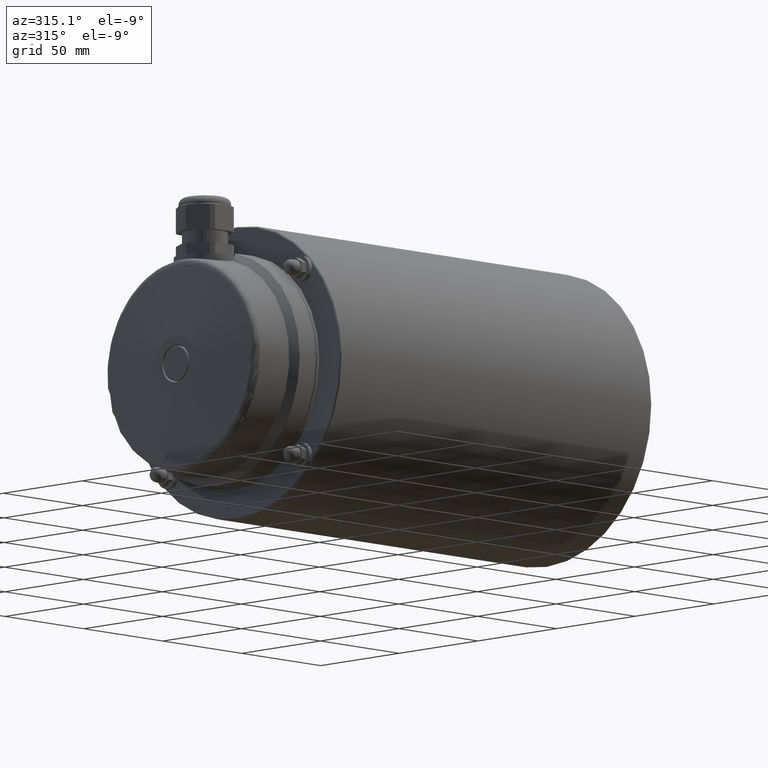
[diagram: clean part render]
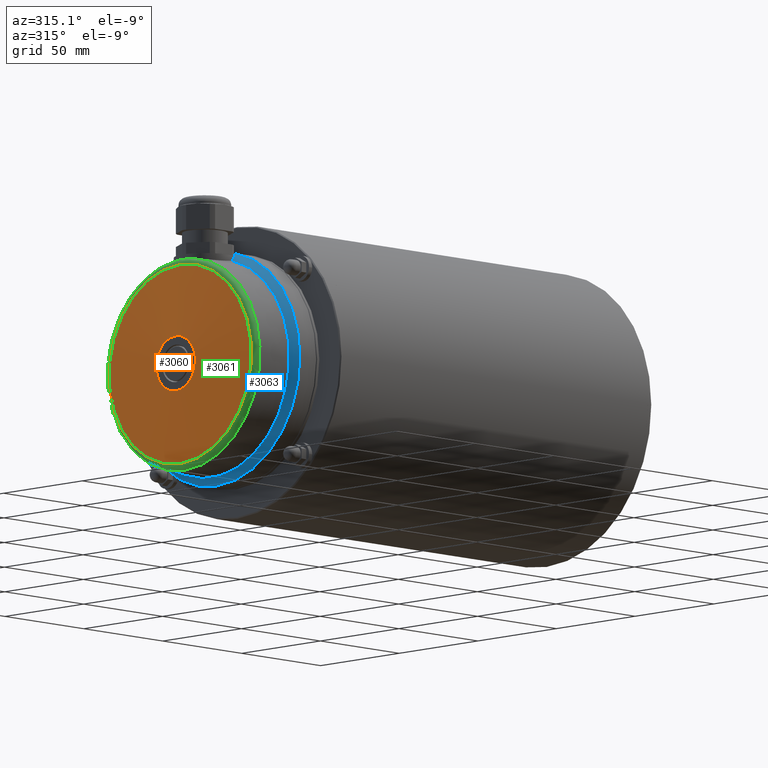
[diagram: same view with three faces highlighted in distinct colors, each labeled with its STEP entity id]
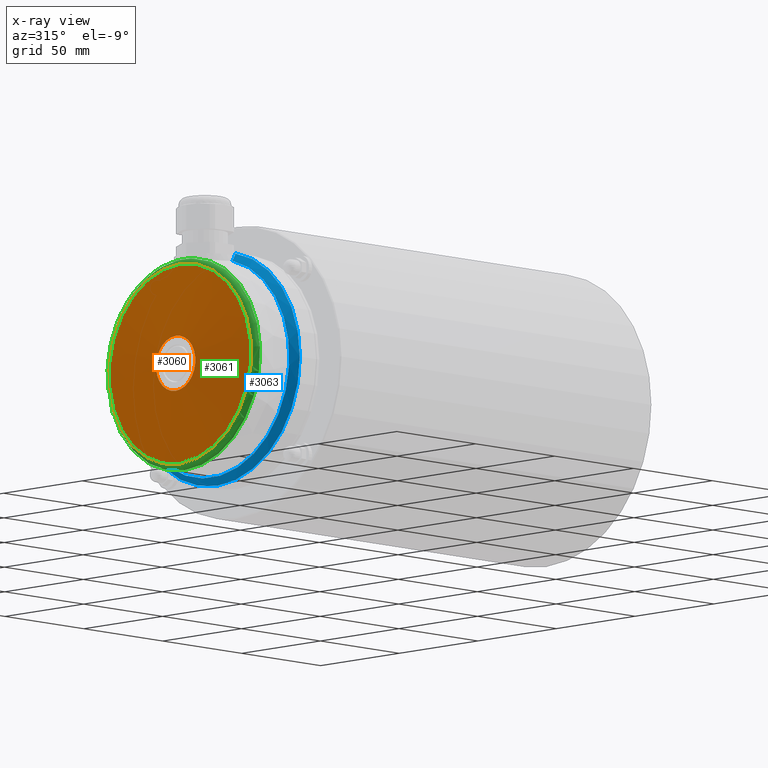
[diagram: x-ray of the same camera — body ghosted, the three highlighted faces saturated]
A machine part, auxiliary view with three faces highlighted in distinct colors.
The next image is the same camera in x-ray (body ghosted, the three faces saturated) — at least one of them is partly hidden behind the body in this view.
Their STEP definitions:

[orange] entity #3060 — the highlighted conical surface has half-angle 85 deg.
#40=CONICAL_SURFACE('',#3275,12.5,1.48352986419518);
#204=CIRCLE('',#3274,12.5);
#205=CIRCLE('',#3276,45.2778767519798);
#363=ORIENTED_EDGE('',*,*,#844,.T.);
#364=ORIENTED_EDGE('',*,*,#843,.F.);
#843=EDGE_CURVE('',#1094,#1094,#204,.T.);
#844=EDGE_CURVE('',#1095,#1095,#205,.T.);
#1094=VERTEX_POINT('',#4304);
#1095=VERTEX_POINT('',#4307);
#1526=EDGE_LOOP('',(#363));
#1527=EDGE_LOOP('',(#364));
#1763=FACE_BOUND('',#1526,.T.);
#1764=FACE_BOUND('',#1527,.T.);
#3060=ADVANCED_FACE('',(#1763,#1764),#40,.T.);
#3274=AXIS2_PLACEMENT_3D('',#4303,#3660,#3661);
#3275=AXIS2_PLACEMENT_3D('',#4305,#3662,#3663);
#3276=AXIS2_PLACEMENT_3D('',#4306,#3664,#3665);
#3660=DIRECTION('',(-1.,0.,0.));
#3661=DIRECTION('',(0.,0.,1.));
#3662=DIRECTION('',(1.,0.,0.));
#3663=DIRECTION('',(0.,0.,-1.));
#3664=DIRECTION('',(-1.,0.,0.));
#3665=DIRECTION('',(0.,0.,1.));
#4303=CARTESIAN_POINT('',(-241.,0.,0.));
#4304=CARTESIAN_POINT('',(-241.,0.,12.5));
#4305=CARTESIAN_POINT('',(-241.,0.,0.));
#4306=CARTESIAN_POINT('',(-238.132307369752,0.,0.));
#4307=CARTESIAN_POINT('',(-238.132307369752,0.,45.2778767519798));

[blue] entity #3063 — the highlighted conical surface has half-angle 45 deg.
#42=CONICAL_SURFACE('',#3281,49.5,0.785398163397453);
#132=B_SPLINE_CURVE_WITH_KNOTS('',3,(#4343,#4344,#4345,#4346),
 .UNSPECIFIED.,.F.,.F.,(4,4),(0.000390959513495743,0.00246590546474877),
 .UNSPECIFIED.);
#133=B_SPLINE_CURVE_WITH_KNOTS('',3,(#4349,#4350,#4351,#4352),
 .UNSPECIFIED.,.F.,.F.,(4,4),(0.000506503699193227,0.00371883899180648),
 .UNSPECIFIED.);
#134=B_SPLINE_CURVE_WITH_KNOTS('',3,(#4353,#4354,#4355,#4356),
 .UNSPECIFIED.,.F.,.F.,(4,4),(0.00262470275452304,0.00583703804713626),
 .UNSPECIFIED.);
#135=B_SPLINE_CURVE_WITH_KNOTS('',3,(#4358,#4359,#4360,#4361),
 .UNSPECIFIED.,.F.,.F.,(4,4),(0.000555408213408047,0.00263035416466102),
 .UNSPECIFIED.);
#207=CIRCLE('',#3280,49.5);
#208=CIRCLE('',#3282,52.8171893646357);
#372=ORIENTED_EDGE('',*,*,#850,.F.);
#373=ORIENTED_EDGE('',*,*,#851,.F.);
#374=ORIENTED_EDGE('',*,*,#848,.F.);
#375=ORIENTED_EDGE('',*,*,#852,.F.);
#376=ORIENTED_EDGE('',*,*,#853,.F.);
#377=ORIENTED_EDGE('',*,*,#854,.T.);
#848=EDGE_CURVE('',#1098,#1099,#207,.T.);
#850=EDGE_CURVE('',#1100,#1101,#132,.T.);
#851=EDGE_CURVE('',#1099,#1100,#133,.T.);
#852=EDGE_CURVE('',#1102,#1098,#134,.T.);
#853=EDGE_CURVE('',#1103,#1102,#135,.T.);
#854=EDGE_CURVE('',#1103,#1101,#208,.T.);
#1098=VERTEX_POINT('',#4329);
#1099=VERTEX_POINT('',#4331);
#1100=VERTEX_POINT('',#4347);
#1101=VERTEX_POINT('',#4348);
#1102=VERTEX_POINT('',#4357);
#1103=VERTEX_POINT('',#4362);
#1531=EDGE_LOOP('',(#372,#373,#374,#375,#376,#377));
#1768=FACE_BOUND('',#1531,.T.);
#3063=ADVANCED_FACE('',(#1768),#42,.T.);
#3280=AXIS2_PLACEMENT_3D('',#4330,#3672,#3673);
#3281=AXIS2_PLACEMENT_3D('',#4342,#3674,#3675);
#3282=AXIS2_PLACEMENT_3D('',#4363,#3676,#3677);
#3672=DIRECTION('',(-1.,0.,0.));
#3673=DIRECTION('',(0.,0.,1.));
#3674=DIRECTION('',(1.,0.,0.));
#3675=DIRECTION('',(0.,0.,-1.));
#3676=DIRECTION('',(-1.,0.,0.));
#3677=DIRECTION('',(0.,0.,1.));
#4329=CARTESIAN_POINT('',(-218.317189364636,13.3605424735931,47.662835677405));
#4330=CARTESIAN_POINT('',(-218.317189364636,0.,0.));
#4331=CARTESIAN_POINT('',(-218.317189364636,-13.3605424735931,47.6628356774051));
#4342=CARTESIAN_POINT('',(-218.317189364636,0.,0.));
#4343=CARTESIAN_POINT('',(-216.269356426136,-12.5371081456398,50.));
#4344=CARTESIAN_POINT('',(-215.838584988392,-12.3230250206318,50.4977863479575));
#4345=CARTESIAN_POINT('',(-215.415424301367,-12.0851490547601,50.9904694855648));
#4346=CARTESIAN_POINT('',(-215.,-11.8215904175371,51.4772327575968));
#4347=CARTESIAN_POINT('',(-216.269356426136,-12.5371081456399,50.));
#4348=CARTESIAN_POINT('',(-215.,-11.8215904175369,51.4772327575967));
#4349=CARTESIAN_POINT('',(-218.317189364636,-13.3605424735931,47.6628356774051));
#4350=CARTESIAN_POINT('',(-217.618155576158,-13.1416946258575,48.4501597625389));
#4351=CARTESIAN_POINT('',(-216.935798292994,-12.8683138500859,49.2298800849778));
#4352=CARTESIAN_POINT('',(-216.269356426136,-12.5371081456399,50.));
#4353=CARTESIAN_POINT('',(-216.269356426136,12.5371081456399,50.));
#4354=CARTESIAN_POINT('',(-216.935798292994,12.8683138500859,49.2298800849778));
#4355=CARTESIAN_POINT('',(-217.618155576158,13.1416946258575,48.4501597625389));
#4356=CARTESIAN_POINT('',(-218.317189364636,13.3605424735931,47.6628356774051));
#4357=CARTESIAN_POINT('',(-216.269356426136,12.5371081456399,50.));
#4358=CARTESIAN_POINT('',(-215.,11.8215904175373,51.4772327575967));
#4359=CARTESIAN_POINT('',(-215.415424301367,12.0851490547603,50.9904694855647));
#4360=CARTESIAN_POINT('',(-215.838584988392,12.323025020632,50.4977863479575));
#4361=CARTESIAN_POINT('',(-216.269356426136,12.53710814564,50.));
#4362=CARTESIAN_POINT('',(-215.,11.821590417537,51.4772327575967));
#4363=CARTESIAN_POINT('',(-215.,0.,0.));

[green] entity #3061 — the highlighted toroidal blend (fillet) surface has major radius 45.0164 mm and minor (blend) radius 3 mm.
#32=TOROIDAL_SURFACE('',#3277,45.0164095237369,3.);
#129=B_SPLINE_CURVE_WITH_KNOTS('',3,(#4309,#4310,#4311,#4312,#4313,#4314,
#4315),.UNSPECIFIED.,.F.,.F.,(4,1,1,1,4),(5.09810159837387E-7,0.00277432661867791,
0.00554814342719599,0.00832196023571406,0.0110957770442321),
 .UNSPECIFIED.);
#205=CIRCLE('',#3276,45.2778767519798);
#206=CIRCLE('',#3278,48.0049936180121);
#365=ORIENTED_EDGE('',*,*,#845,.F.);
#366=ORIENTED_EDGE('',*,*,#846,.T.);
#367=ORIENTED_EDGE('',*,*,#844,.F.);
#844=EDGE_CURVE('',#1095,#1095,#205,.T.);
#845=EDGE_CURVE('',#1096,#1097,#129,.T.);
#846=EDGE_CURVE('',#1096,#1097,#206,.T.);
#1095=VERTEX_POINT('',#4307);
#1096=VERTEX_POINT('',#4316);
#1097=VERTEX_POINT('',#4317);
#1528=EDGE_LOOP('',(#365,#366));
#1529=EDGE_LOOP('',(#367));
#1765=FACE_BOUND('',#1528,.T.);
#1766=FACE_BOUND('',#1529,.T.);
#3061=ADVANCED_FACE('',(#1765,#1766),#32,.T.);
#3276=AXIS2_PLACEMENT_3D('',#4306,#3664,#3665);
#3277=AXIS2_PLACEMENT_3D('',#4308,#3666,#3667);
#3278=AXIS2_PLACEMENT_3D('',#4318,#3668,#3669);
#3664=DIRECTION('',(-1.,0.,0.));
#3665=DIRECTION('',(0.,0.,1.));
#3666=DIRECTION('',(-1.,0.,0.));
#3667=DIRECTION('',(0.,0.,1.));
#3668=DIRECTION('',(-1.,0.,0.));
#3669=DIRECTION('',(0.,0.,1.));
#4306=CARTESIAN_POINT('',(-238.132307369752,0.,0.));
#4307=CARTESIAN_POINT('',(-238.132307369752,0.,45.2778767519798));
#4308=CARTESIAN_POINT('',(-235.143723275477,0.,0.));
#4309=CARTESIAN_POINT('',(-235.40519050372,5.42734355488066,47.6972048887844));
#4310=CARTESIAN_POINT('',(-235.767899034784,4.56489166780534,47.7634034380248));
#4311=CARTESIAN_POINT('',(-236.312003647978,2.79805459269354,47.7425014583876));
#4312=CARTESIAN_POINT('',(-236.592593458139,-0.00597975294695189,47.6673535711381));
#4313=CARTESIAN_POINT('',(-236.317622255143,-2.76747176409332,47.7420228897695));
#4314=CARTESIAN_POINT('',(-235.767244367644,-4.56644834172596,47.7632839536151));
#4315=CARTESIAN_POINT('',(-235.40519050372,-5.42734355488094,47.6972048887851));
#4316=CARTESIAN_POINT('',(-235.40519050372,5.42734355488066,47.6972048887844));
#4317=CARTESIAN_POINT('',(-235.40519050372,-5.42734355488066,47.6972048887844));
#4318=CARTESIAN_POINT('',(-235.40519050372,0.,0.));